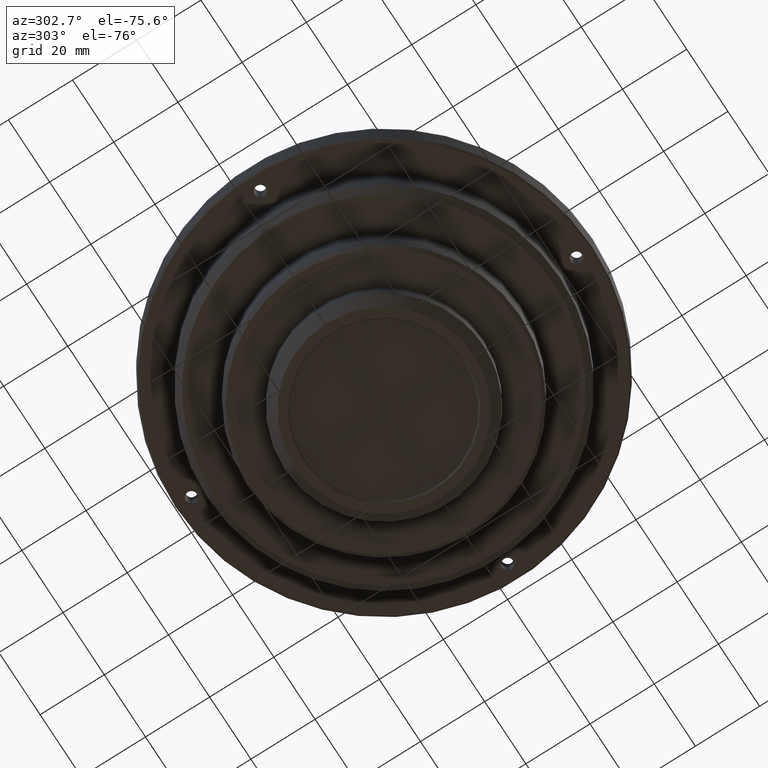
[diagram: clean part render]
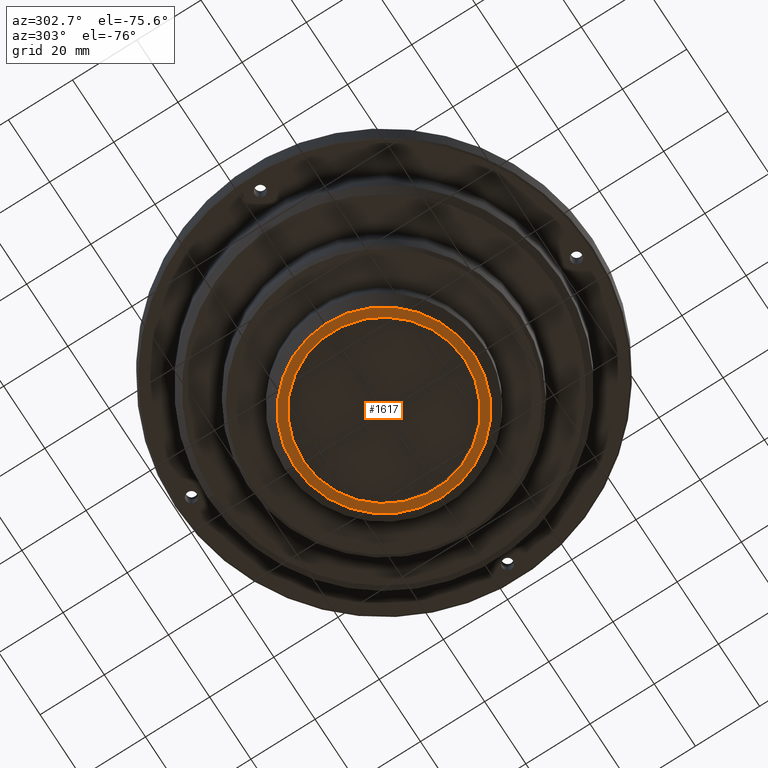
[diagram: same view with one face highlighted and labeled with its STEP entity id]
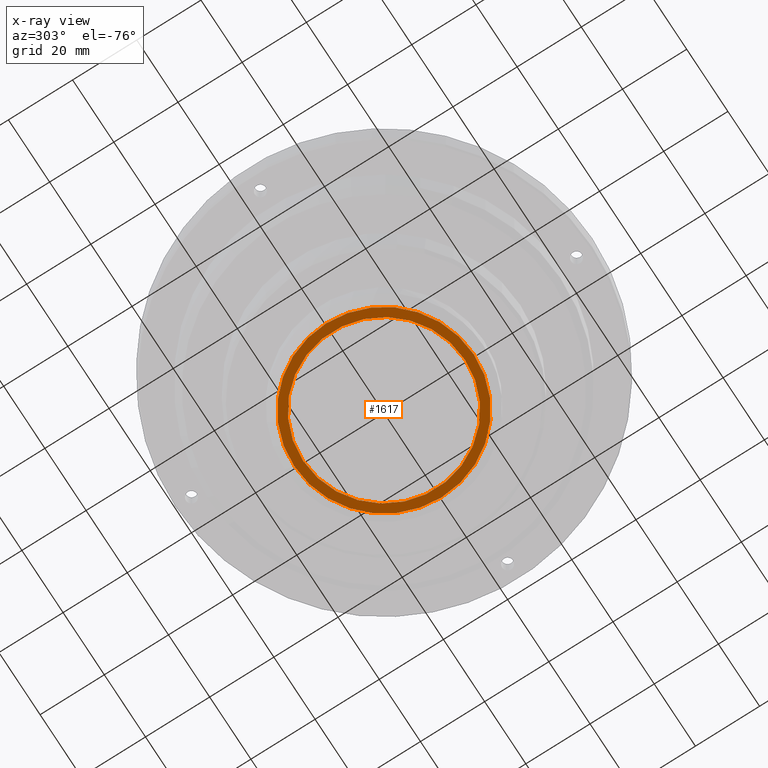
[diagram: x-ray of the same camera — body ghosted, the highlighted face saturated]
A machine part, auxiliary view. The second image highlights one B-rep face of the part: STEP entity #1617.
The next image is the same camera in x-ray: the body ghosted, the highlighted face saturated — about 0% of this face is hidden behind the body in this view.
In plain terms, the highlighted planar face has unit normal (0, 0, -1).
Its self-contained STEP definition (entity closure, byte-faithful):
#5 = ORIENTED_EDGE ( 'NONE', *, *, #1532, .T. ) ;
#94 = ORIENTED_EDGE ( 'NONE', *, *, #1237, .F. ) ;
#120 = VERTEX_POINT ( 'NONE', #2273 ) ;
#191 = CARTESIAN_POINT ( 'NONE',  ( 0.000000000000000000, 25.24997453271000225, 20.00001079935000092 ) ) ;
#213 = PLANE ( 'NONE',  #1128 ) ;
#392 = EDGE_CURVE ( 'NONE', #1716, #120, #1096, .T. ) ;
#567 = AXIS2_PLACEMENT_3D ( 'NONE', #1904, #849, #1014 ) ;
#573 = CIRCLE ( 'NONE', #2023, 27.99998919891000071 ) ;
#575 = CARTESIAN_POINT ( 'NONE',  ( 0.000000000000000000, 0.000000000000000000, 20.00001079935000092 ) ) ;
#849 = DIRECTION ( 'NONE',  ( 0.000000000000000000, 0.000000000000000000, -1.000000000000000000 ) ) ;
#852 = DIRECTION ( 'NONE',  ( 0.000000000000000000, 1.000000000000000000, 0.000000000000000000 ) ) ;
#905 = CARTESIAN_POINT ( 'NONE',  ( 0.000000000000000000, 0.000000000000000000, 20.00001079935000092 ) ) ;
#927 = FACE_OUTER_BOUND ( 'NONE', #1766, .T. ) ;
#1014 = DIRECTION ( 'NONE',  ( 0.000000000000000000, 1.000000000000000000, 0.000000000000000000 ) ) ;
#1028 = CARTESIAN_POINT ( 'NONE',  ( 0.000000000000000000, 0.000000000000000000, 20.00001079935000092 ) ) ;
#1061 = DIRECTION ( 'NONE',  ( 0.000000000000000000, 0.000000000000000000, -1.000000000000000000 ) ) ;
#1089 = DIRECTION ( 'NONE',  ( 0.000000000000000000, 1.000000000000000000, 0.000000000000000000 ) ) ;
#1096 = CIRCLE ( 'NONE', #2222, 25.24997453271000225 ) ;
#1128 = AXIS2_PLACEMENT_3D ( 'NONE', #575, #1061, #1626 ) ;
#1235 = FACE_BOUND ( 'NONE', #1945, .T. ) ;
#1237 = EDGE_CURVE ( 'NONE', #2177, #1777, #573, .T. ) ;
#1404 = DIRECTION ( 'NONE',  ( 0.000000000000000000, 0.000000000000000000, 1.000000000000000000 ) ) ;
#1463 = CARTESIAN_POINT ( 'NONE',  ( 0.000000000000000000, 27.99998919891000071, 20.00001079935000092 ) ) ;
#1532 = EDGE_CURVE ( 'NONE', #2177, #1777, #1556, .T. ) ;
#1545 = DIRECTION ( 'NONE',  ( 0.000000000000000000, 0.000000000000000000, 1.000000000000000000 ) ) ;
#1556 = CIRCLE ( 'NONE', #567, 27.99998919891000071 ) ;
#1582 = CARTESIAN_POINT ( 'NONE',  ( 0.000000000000000000, 0.000000000000000000, 20.00001079935000092 ) ) ;
#1617 = ADVANCED_FACE ( 'NONE', ( #1235, #927 ), #213, .T. ) ;
#1626 = DIRECTION ( 'NONE',  ( 0.000000000000000000, -1.000000000000000000, 0.000000000000000000 ) ) ;
#1716 = VERTEX_POINT ( 'NONE', #191 ) ;
#1738 = CIRCLE ( 'NONE', #2044, 25.24997453271000225 ) ;
#1764 = DIRECTION ( 'NONE',  ( 0.000000000000000000, 1.000000000000000000, 0.000000000000000000 ) ) ;
#1766 = EDGE_LOOP ( 'NONE', ( #94, #5 ) ) ;
#1767 = ORIENTED_EDGE ( 'NONE', *, *, #2165, .F. ) ;
#1777 = VERTEX_POINT ( 'NONE', #1827 ) ;
#1827 = CARTESIAN_POINT ( 'NONE',  ( 0.000000000000000000, -27.99998919891000071, 20.00001079935000092 ) ) ;
#1904 = CARTESIAN_POINT ( 'NONE',  ( 0.000000000000000000, 0.000000000000000000, 20.00001079935000092 ) ) ;
#1945 = EDGE_LOOP ( 'NONE', ( #1767, #2076 ) ) ;
#2023 = AXIS2_PLACEMENT_3D ( 'NONE', #1028, #1545, #1764 ) ;
#2044 = AXIS2_PLACEMENT_3D ( 'NONE', #905, #2144, #1089 ) ;
#2076 = ORIENTED_EDGE ( 'NONE', *, *, #392, .T. ) ;
#2144 = DIRECTION ( 'NONE',  ( 0.000000000000000000, 0.000000000000000000, -1.000000000000000000 ) ) ;
#2165 = EDGE_CURVE ( 'NONE', #1716, #120, #1738, .T. ) ;
#2177 = VERTEX_POINT ( 'NONE', #1463 ) ;
#2222 = AXIS2_PLACEMENT_3D ( 'NONE', #1582, #1404, #852 ) ;
#2273 = CARTESIAN_POINT ( 'NONE',  ( 0.000000000000000000, -25.24997453271000225, 20.00001079935000092 ) ) ;